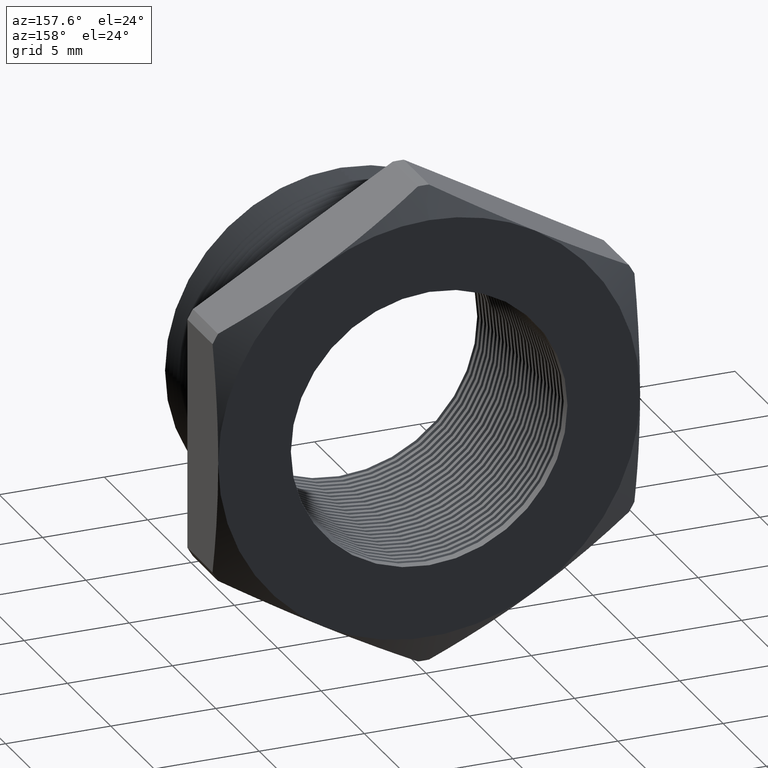
[diagram: clean part render]
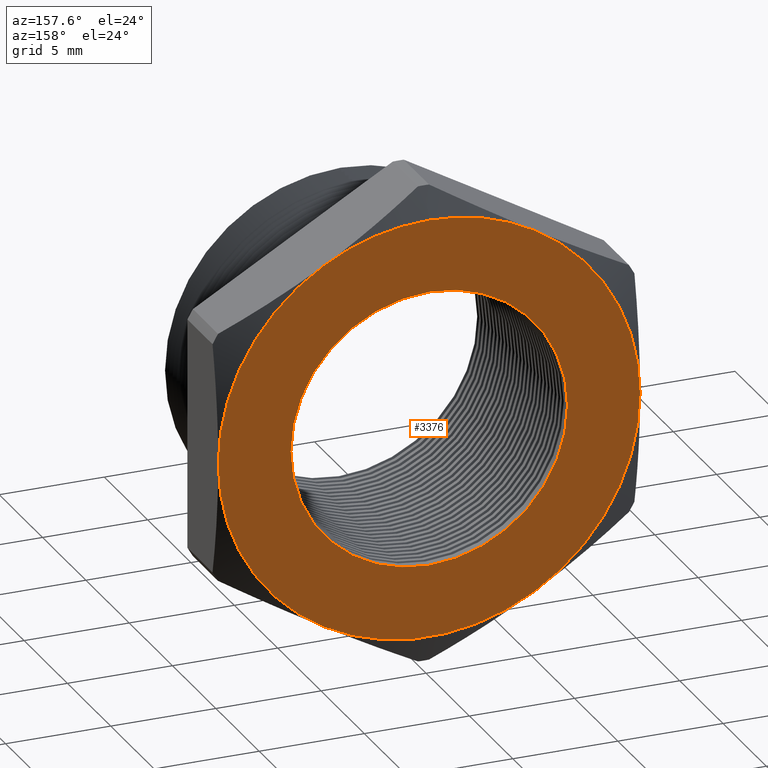
[diagram: same view with one face highlighted and labeled with its STEP entity id]
A machine part, auxiliary view. The second image highlights one B-rep face of the part: STEP entity #3376.
In plain terms, the highlighted planar face has unit normal (0, 1, 0).
Its self-contained STEP definition (entity closure, byte-faithful):
#832 = FACE_BOUND ( 'NONE', #3368, .T. ) ;
#863 = CIRCLE ( 'NONE', #6418, 0.3949999999999999600 ) ;
#875 = CARTESIAN_POINT ( 'NONE',  ( 0.3949999999999999600, 0.4075548905829479200, 1.182924880895400500E-016 ) ) ;
#876 = CARTESIAN_POINT ( 'NONE',  ( 0.1975000000000000400, 0.4075548905829479200, -0.3420800344948534700 ) ) ;
#877 = DIRECTION ( 'NONE',  ( 0.0000000000000000000, 0.0000000000000000000, 1.000000000000000000 ) ) ;
#878 = DIRECTION ( 'NONE',  ( 0.0000000000000000000, 1.000000000000000000, 0.0000000000000000000 ) ) ;
#879 = CARTESIAN_POINT ( 'NONE',  ( 0.0000000000000000000, 0.4075548905829479200, 0.0000000000000000000 ) ) ;
#880 = AXIS2_PLACEMENT_3D ( 'NONE', #879, #878, #877 ) ;
#881 = CIRCLE ( 'NONE', #880, 0.3949999999999999600 ) ;
#888 = DIRECTION ( 'NONE',  ( 0.0000000000000000000, -0.0000000000000000000, 1.000000000000000000 ) ) ;
#889 = DIRECTION ( 'NONE',  ( 0.0000000000000000000, 1.000000000000000000, 0.0000000000000000000 ) ) ;
#890 = AXIS2_PLACEMENT_3D ( 'NONE', #891, #889, #888 ) ;
#891 = CARTESIAN_POINT ( 'NONE',  ( 0.4502999999999999800, 0.4075548905829479200, 0.0000000000000000000 ) ) ;
#892 = PLANE ( 'NONE',  #890 ) ;
#893 = FACE_OUTER_BOUND ( 'NONE', #3400, .T. ) ;
#894 = CARTESIAN_POINT ( 'NONE',  ( -0.3949999999999999600, 0.4075548905829479200, 0.0000000000000000000 ) ) ;
#895 = DIRECTION ( 'NONE',  ( 0.0000000000000000000, 0.0000000000000000000, 1.000000000000000000 ) ) ;
#896 = DIRECTION ( 'NONE',  ( 0.0000000000000000000, 1.000000000000000000, 0.0000000000000000000 ) ) ;
#897 = CARTESIAN_POINT ( 'NONE',  ( 0.0000000000000000000, 0.4075548905829479200, 0.0000000000000000000 ) ) ;
#898 = AXIS2_PLACEMENT_3D ( 'NONE', #897, #896, #895 ) ;
#899 = CIRCLE ( 'NONE', #898, 0.3949999999999999600 ) ;
#900 = CARTESIAN_POINT ( 'NONE',  ( -0.1975000000000000900, 0.4075548905829479200, -0.3420800344948533000 ) ) ;
#912 = DIRECTION ( 'NONE',  ( 0.0000000000000000000, 0.0000000000000000000, -1.000000000000000000 ) ) ;
#913 = DIRECTION ( 'NONE',  ( -0.0000000000000000000, -1.000000000000000000, -0.0000000000000000000 ) ) ;
#914 = CARTESIAN_POINT ( 'NONE',  ( 0.0000000000000000000, 0.4075548905829479200, 0.0000000000000000000 ) ) ;
#915 = AXIS2_PLACEMENT_3D ( 'NONE', #914, #913, #912 ) ;
#916 = CIRCLE ( 'NONE', #915, 0.2589880461203001900 ) ;
#919 = DIRECTION ( 'NONE',  ( 0.0000000000000000000, 0.0000000000000000000, 1.000000000000000000 ) ) ;
#920 = DIRECTION ( 'NONE',  ( 0.0000000000000000000, 1.000000000000000000, 0.0000000000000000000 ) ) ;
#921 = CARTESIAN_POINT ( 'NONE',  ( 0.0000000000000000000, 0.4075548905829479200, 0.0000000000000000000 ) ) ;
#922 = AXIS2_PLACEMENT_3D ( 'NONE', #921, #920, #919 ) ;
#923 = CIRCLE ( 'NONE', #922, 0.3949999999999999600 ) ;
#924 = CARTESIAN_POINT ( 'NONE',  ( -0.1974999999999999800, 0.4075548905829479200, 0.3420800344948533600 ) ) ;
#942 = DIRECTION ( 'NONE',  ( 0.0000000000000000000, 0.0000000000000000000, 1.000000000000000000 ) ) ;
#943 = DIRECTION ( 'NONE',  ( 0.0000000000000000000, 1.000000000000000000, 0.0000000000000000000 ) ) ;
#944 = CARTESIAN_POINT ( 'NONE',  ( 0.0000000000000000000, 0.4075548905829479200, 0.0000000000000000000 ) ) ;
#945 = AXIS2_PLACEMENT_3D ( 'NONE', #944, #943, #942 ) ;
#946 = CIRCLE ( 'NONE', #945, 0.3949999999999999600 ) ;
#951 = DIRECTION ( 'NONE',  ( 0.0000000000000000000, 0.0000000000000000000, 1.000000000000000000 ) ) ;
#952 = DIRECTION ( 'NONE',  ( 0.0000000000000000000, 1.000000000000000000, 0.0000000000000000000 ) ) ;
#953 = CARTESIAN_POINT ( 'NONE',  ( 0.0000000000000000000, 0.4075548905829479200, 0.0000000000000000000 ) ) ;
#954 = AXIS2_PLACEMENT_3D ( 'NONE', #953, #952, #951 ) ;
#955 = CIRCLE ( 'NONE', #954, 0.3949999999999999600 ) ;
#1997 = CARTESIAN_POINT ( 'NONE',  ( 0.0000000000000000000, 0.4075548905829479200, -0.2589880461203001900 ) ) ;
#2052 = CARTESIAN_POINT ( 'NONE',  ( 3.171688816986526800E-017, 0.4075548905829479200, 0.2589880461203001900 ) ) ;
#2053 = DIRECTION ( 'NONE',  ( 0.0000000000000000000, 0.0000000000000000000, -1.000000000000000000 ) ) ;
#2054 = DIRECTION ( 'NONE',  ( -0.0000000000000000000, -1.000000000000000000, -0.0000000000000000000 ) ) ;
#2055 = CARTESIAN_POINT ( 'NONE',  ( 0.0000000000000000000, 0.4075548905829479200, 0.0000000000000000000 ) ) ;
#2056 = AXIS2_PLACEMENT_3D ( 'NONE', #2055, #2054, #2053 ) ;
#2057 = CIRCLE ( 'NONE', #2056, 0.2589880461203001900 ) ;
#2939 = VERTEX_POINT ( 'NONE', #5893 ) ;
#2945 = EDGE_CURVE ( 'NONE', #2939, #2946, #5877, .T. ) ;
#2946 = VERTEX_POINT ( 'NONE', #5878 ) ;
#3366 = ORIENTED_EDGE ( 'NONE', *, *, #3399, .T. ) ;
#3368 = EDGE_LOOP ( 'NONE', ( #3366, #3398 ) ) ;
#3376 = ADVANCED_FACE ( 'NONE', ( #832, #893 ), #892, .T. ) ;
#3380 = EDGE_CURVE ( 'NONE', #3386, #3383, #881, .T. ) ;
#3383 = VERTEX_POINT ( 'NONE', #876 ) ;
#3384 = ORIENTED_EDGE ( 'NONE', *, *, #3414, .T. ) ;
#3385 = ORIENTED_EDGE ( 'NONE', *, *, #3380, .T. ) ;
#3386 = VERTEX_POINT ( 'NONE', #875 ) ;
#3389 = EDGE_CURVE ( 'NONE', #2946, #3386, #863, .T. ) ;
#3390 = ORIENTED_EDGE ( 'NONE', *, *, #2945, .T. ) ;
#3391 = ORIENTED_EDGE ( 'NONE', *, *, #3389, .T. ) ;
#3392 = VERTEX_POINT ( 'NONE', #924 ) ;
#3393 = EDGE_CURVE ( 'NONE', #3392, #2939, #923, .T. ) ;
#3394 = ORIENTED_EDGE ( 'NONE', *, *, #3393, .T. ) ;
#3398 = ORIENTED_EDGE ( 'NONE', *, *, #6593, .T. ) ;
#3399 = EDGE_CURVE ( 'NONE', #6591, #6594, #916, .T. ) ;
#3400 = EDGE_LOOP ( 'NONE', ( #3394, #3390, #3391, #3385, #3384, #3410, #3418 ) ) ;
#3406 = VERTEX_POINT ( 'NONE', #900 ) ;
#3408 = EDGE_CURVE ( 'NONE', #3406, #3409, #899, .T. ) ;
#3409 = VERTEX_POINT ( 'NONE', #894 ) ;
#3410 = ORIENTED_EDGE ( 'NONE', *, *, #3408, .T. ) ;
#3412 = EDGE_CURVE ( 'NONE', #3409, #3392, #955, .T. ) ;
#3414 = EDGE_CURVE ( 'NONE', #3383, #3406, #946, .T. ) ;
#3418 = ORIENTED_EDGE ( 'NONE', *, *, #3412, .T. ) ;
#5875 = CARTESIAN_POINT ( 'NONE',  ( 0.0000000000000000000, 0.4075548905829479200, 0.0000000000000000000 ) ) ;
#5876 = AXIS2_PLACEMENT_3D ( 'NONE', #5875, #5938, #5937 ) ;
#5877 = CIRCLE ( 'NONE', #5876, 0.3949999999999999600 ) ;
#5878 = CARTESIAN_POINT ( 'NONE',  ( 0.1975000000000001800, 0.4075548905829479700, 0.3420800344948533000 ) ) ;
#5893 = CARTESIAN_POINT ( 'NONE',  ( 0.0000000000000000000, 0.4075548905829479200, 0.3949999999999999600 ) ) ;
#5937 = DIRECTION ( 'NONE',  ( 0.0000000000000000000, 0.0000000000000000000, 1.000000000000000000 ) ) ;
#5938 = DIRECTION ( 'NONE',  ( 0.0000000000000000000, 1.000000000000000000, 0.0000000000000000000 ) ) ;
#6160 = DIRECTION ( 'NONE',  ( 0.0000000000000000000, 0.0000000000000000000, 1.000000000000000000 ) ) ;
#6411 = DIRECTION ( 'NONE',  ( 0.0000000000000000000, 1.000000000000000000, 0.0000000000000000000 ) ) ;
#6412 = CARTESIAN_POINT ( 'NONE',  ( 0.0000000000000000000, 0.4075548905829479200, 0.0000000000000000000 ) ) ;
#6418 = AXIS2_PLACEMENT_3D ( 'NONE', #6412, #6411, #6160 ) ;
#6591 = VERTEX_POINT ( 'NONE', #1997 ) ;
#6593 = EDGE_CURVE ( 'NONE', #6594, #6591, #2057, .T. ) ;
#6594 = VERTEX_POINT ( 'NONE', #2052 ) ;